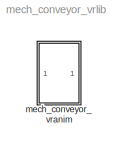
MODEL mech_conveyor_vrlib
KIND library
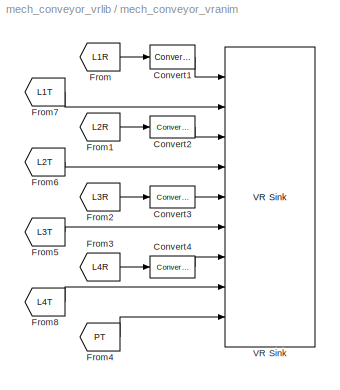
BLOCK [SubSystem] mech_conveyor_vranim
  FunctionWithSeparateData = off
  MaskHideContents = off
  MinAlgLoopOccurrences = off
  Opaque = off
  Ports = []
  PropExecContextOutsideSubsystem = off
  RTWSystemCode = Auto
  RequestExecContextInheritance = off
BLOCK [Reference] mech_conveyor_vranim/Convert1  REF=mblibv1/Utilities/Convert from Rotation Matrix to\nVirtual Reality Toolbox
  Ports = [1, 1]
  SourceBlock = mblibv1/Utilities/Convert from Rotation Matrix to\nVirtual Reality Toolbox
  SourceType = Convert from Rotation Matrix to Virtual Reality Toolbox
  Tag = Pose2VR
BLOCK [Reference] mech_conveyor_vranim/Convert2  REF=mblibv1/Utilities/Convert from Rotation Matrix to\nVirtual Reality Toolbox
  Ports = [1, 1]
  SourceBlock = mblibv1/Utilities/Convert from Rotation Matrix to\nVirtual Reality Toolbox
  SourceType = Convert from Rotation Matrix to Virtual Reality Toolbox
  Tag = Pose2VR
BLOCK [Reference] mech_conveyor_vranim/Convert3  REF=mblibv1/Utilities/Convert from Rotation Matrix to\nVirtual Reality Toolbox
  Ports = [1, 1]
  SourceBlock = mblibv1/Utilities/Convert from Rotation Matrix to\nVirtual Reality Toolbox
  SourceType = Convert from Rotation Matrix to Virtual Reality Toolbox
  Tag = Pose2VR
BLOCK [Reference] mech_conveyor_vranim/Convert4  REF=mblibv1/Utilities/Convert from Rotation Matrix to\nVirtual Reality Toolbox
  Ports = [1, 1]
  SourceBlock = mblibv1/Utilities/Convert from Rotation Matrix to\nVirtual Reality Toolbox
  SourceType = Convert from Rotation Matrix to Virtual Reality Toolbox
  Tag = Pose2VR
BLOCK [From] mech_conveyor_vranim/From
  CloseFcn = tagdialog Close
  GotoTag = L1R
BLOCK [From] mech_conveyor_vranim/From1
  CloseFcn = tagdialog Close
  GotoTag = L2R
BLOCK [From] mech_conveyor_vranim/From2
  CloseFcn = tagdialog Close
  GotoTag = L3R
BLOCK [From] mech_conveyor_vranim/From3
  CloseFcn = tagdialog Close
  GotoTag = L4R
BLOCK [From] mech_conveyor_vranim/From4
  CloseFcn = tagdialog Close
  GotoTag = PT
BLOCK [From] mech_conveyor_vranim/From5
  CloseFcn = tagdialog Close
  GotoTag = L3T
BLOCK [From] mech_conveyor_vranim/From6
  CloseFcn = tagdialog Close
  GotoTag = L2T
BLOCK [From] mech_conveyor_vranim/From7
  CloseFcn = tagdialog Close
  GotoTag = L1T
BLOCK [From] mech_conveyor_vranim/From8
  CloseFcn = tagdialog Close
  GotoTag = L4T
BLOCK [Reference] mech_conveyor_vranim/VR Sink  REF=vrlib/VR Sink
  AutoView = off
  FieldsWritten = Link1.rotation.4#Link1.translation.3#Link2.rotation.4#Link2.translation.3#Link3.rotation.4#Link3.translation.3#Link4.rotation.4#Link4.translation.3#Pusher.translation.3
  FigureProperties = {}
  Ports = [9]
  RemoteChange = off
  RemoteView = off
  SampleTime = 0.1
  SourceBlock = vrlib/VR Sink
  SourceType = Virtual Reality Sink
  ViewEnable = on
  WorldDescription = convmech
  WorldFileName = convmech.wrl
LINE mech_conveyor_vranim/Convert1:1 -> mech_conveyor_vranim/VR Sink:1
LINE mech_conveyor_vranim/Convert2:1 -> mech_conveyor_vranim/VR Sink:3
LINE mech_conveyor_vranim/Convert3:1 -> mech_conveyor_vranim/VR Sink:5
LINE mech_conveyor_vranim/Convert4:1 -> mech_conveyor_vranim/VR Sink:7
LINE mech_conveyor_vranim/From1:1 -> mech_conveyor_vranim/Convert2:1
LINE mech_conveyor_vranim/From2:1 -> mech_conveyor_vranim/Convert3:1
LINE mech_conveyor_vranim/From3:1 -> mech_conveyor_vranim/Convert4:1
LINE mech_conveyor_vranim/From4:1 -> mech_conveyor_vranim/VR Sink:9
LINE mech_conveyor_vranim/From5:1 -> mech_conveyor_vranim/VR Sink:6
LINE mech_conveyor_vranim/From6:1 -> mech_conveyor_vranim/VR Sink:4
LINE mech_conveyor_vranim/From7:1 -> mech_conveyor_vranim/VR Sink:2
LINE mech_conveyor_vranim/From8:1 -> mech_conveyor_vranim/VR Sink:8
LINE mech_conveyor_vranim/From:1 -> mech_conveyor_vranim/Convert1:1
